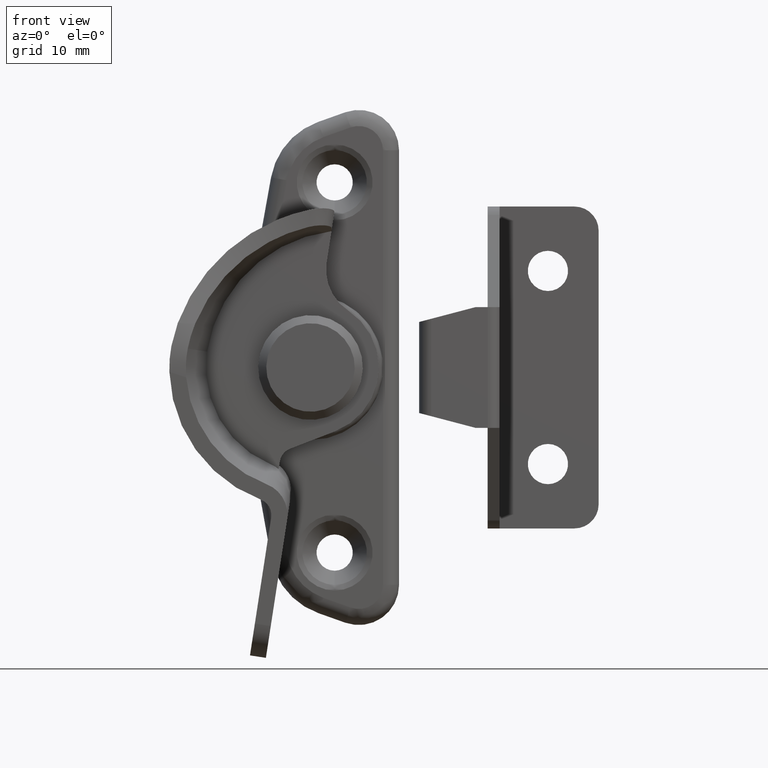
[diagram: clean part render]
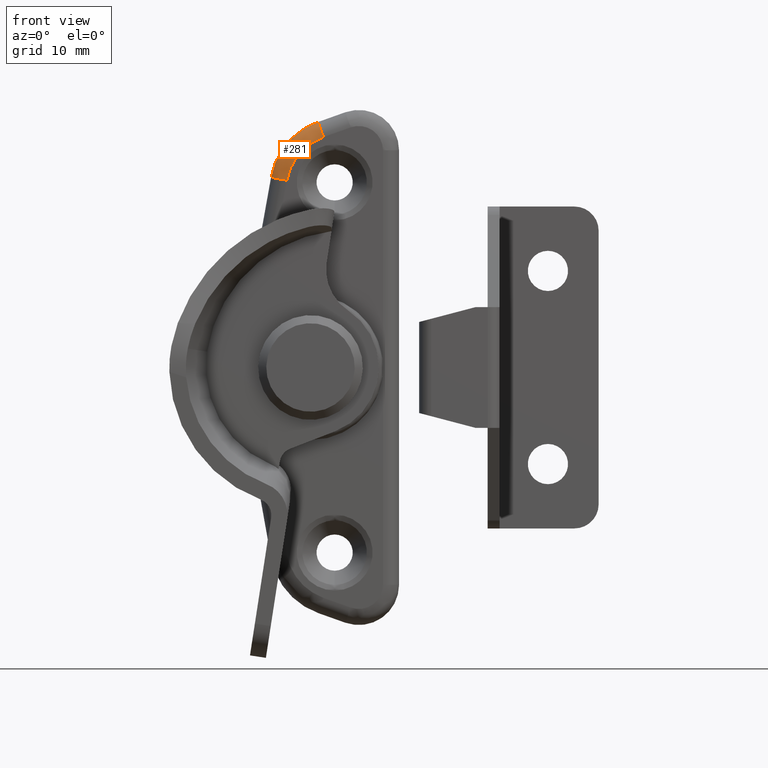
[diagram: same view with one face highlighted and labeled with its STEP entity id]
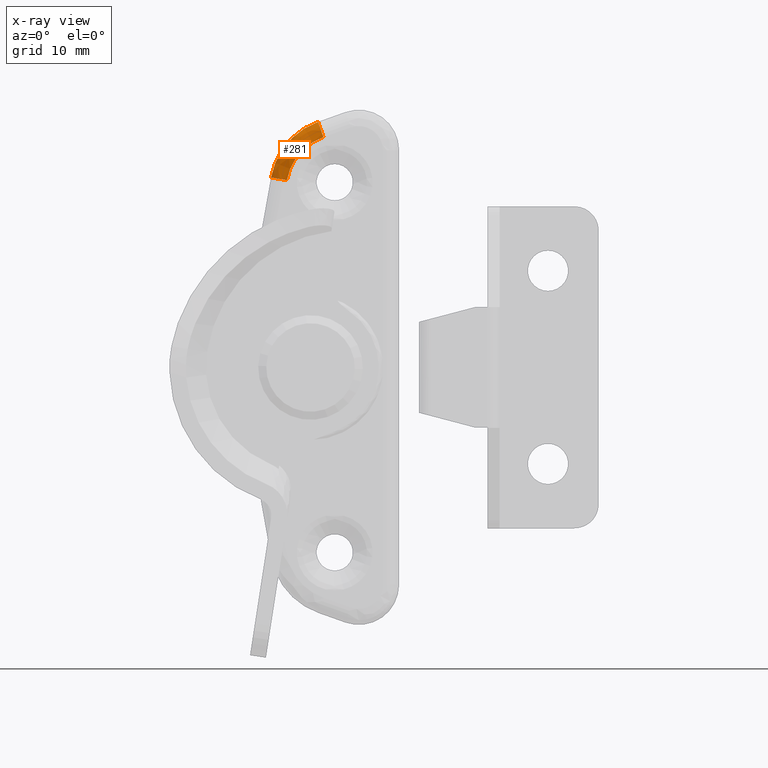
[diagram: x-ray of the same camera — body ghosted, the highlighted face saturated]
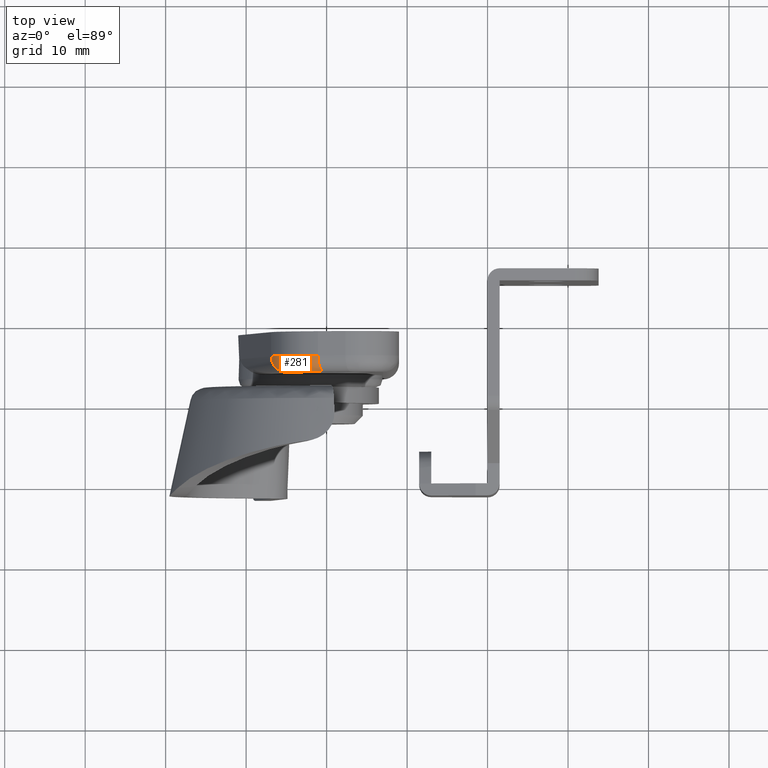
[diagram: same view with one face highlighted and labeled with its STEP entity id]
A machine part, front view. The second image highlights one B-rep face of the part: STEP entity #281.
The next image is the same camera in x-ray: the body ghosted, the highlighted face saturated — about 0% of this face is hidden behind the body in this view.
A second angle (top view) of the same face is appended — the face is thin or edge-on in the first view.
In plain terms, the highlighted face is a freeform B-spline surface patch.
Its self-contained STEP definition (entity closure, byte-faithful):
#281=ADVANCED_FACE('',(#1358),#1357,.T.);
#1357=( BOUNDED_SURFACE() B_SPLINE_SURFACE( 2,2,((#3332,#3333,#3334,#3335,#3336),(#3337,#3338,#3339,#3340,#3341),(#3342,#3343,#3344,#3345,#3346)), .UNSPECIFIED.,.F.,.F.,.F.) B_SPLINE_SURFACE_WITH_KNOTS((3,3),(3,2,3),(0.00000000000E+00,1.00000000000E+00),(0.00000000000E+00,5.00000000000E-01,1.00000000000E+00), .UNSPECIFIED. ) GEOMETRIC_REPRESENTATION_ITEM() RATIONAL_B_SPLINE_SURFACE(((1.00000000000E+00,7.07106781187E-01,1.00000000000E+00,7.07106781187E-01,1.00000000000E+00),(8.35845060825E-01,5.91031710531E-01,8.35845060825E-01,5.91031710531E-01,8.35845060825E-01),(1.00000000000E+00,7.07106781187E-01,1.00000000000E+00,7.07106781187E-01,1.00000000000E+00))) REPRESENTATION_ITEM('') SURFACE() );
#1358=FACE_OUTER_BOUND('',#3347,.T.);
#3332=CARTESIAN_POINT('',(-2.30002357792E+01,5.50000000000E+00,2.27169939655E+01));
#3333=CARTESIAN_POINT('',(-2.30002357792E+01,3.50000000000E+00,2.27169939655E+01));
#3334=CARTESIAN_POINT('',(-2.49810428909E+01,3.50000000000E+00,2.29934052284E+01));
#3335=CARTESIAN_POINT('',(-2.69618500026E+01,3.50000000000E+00,2.32698164913E+01));
#3336=CARTESIAN_POINT('',(-2.69618500026E+01,5.50000000000E+00,2.32698164913E+01));
#3337=CARTESIAN_POINT('',(-2.25463830480E+01,5.50000000000E+00,2.59693748866E+01));
#3338=CARTESIAN_POINT('',(-2.25463830480E+01,3.50000000000E+00,2.59693748866E+01));
#3339=CARTESIAN_POINT('',(-2.43456490672E+01,3.50000000000E+00,2.75467385179E+01));
#3340=CARTESIAN_POINT('',(-2.61449150864E+01,3.50000000000E+00,2.91241021492E+01));
#3341=CARTESIAN_POINT('',(-2.61449150864E+01,5.50000000000E+00,2.91241021492E+01));
#3342=CARTESIAN_POINT('',(-1.93813689815E+01,5.50000000000E+00,2.68449603571E+01));
#3343=CARTESIAN_POINT('',(-1.93813689815E+01,3.50000000000E+00,2.68449603571E+01));
#3344=CARTESIAN_POINT('',(-1.99146293741E+01,3.50000000000E+00,2.87725581765E+01));
#3345=CARTESIAN_POINT('',(-2.04478897667E+01,3.50000000000E+00,3.07001559960E+01));
#3346=CARTESIAN_POINT('',(-2.04478897667E+01,5.50000000000E+00,3.07001559960E+01));
#3347=EDGE_LOOP('',(#4992,#4993,#4994,#4995));
#4992=ORIENTED_EDGE('',*,*,#5828,.F.);
#4993=ORIENTED_EDGE('',*,*,#5829,.T.);
#4994=ORIENTED_EDGE('',*,*,#5826,.T.);
#4995=ORIENTED_EDGE('',*,*,#5830,.T.);
#5826=EDGE_CURVE('',#7827,#7820,#7828,.T.);
#5828=EDGE_CURVE('',#7840,#7841,#7842,.T.);
#5829=EDGE_CURVE('',#7840,#7827,#7848,.T.);
#5830=EDGE_CURVE('',#7820,#7841,#7854,.T.);
#7820=VERTEX_POINT('',#10924);
#7827=VERTEX_POINT('',#10928);
#7828=CIRCLE('',#10932,2.00000000000E+00);
#7840=VERTEX_POINT('',#10936);
#7841=VERTEX_POINT('',#10937);
#7842=CIRCLE('',#10941,2.00000000000E+00);
#7848=CIRCLE('',#10945,9.00000000000E+00);
#7854=CIRCLE('',#10949,7.00000000000E+00);
#10924=CARTESIAN_POINT('',(-2.49382032699E+01,3.50000000000E+00,2.32621304336E+01));
#10928=CARTESIAN_POINT('',(-2.69067704899E+01,5.50000000000E+00,2.36153203265E+01));
#10929=CARTESIAN_POINT('',(-2.49382032699E+01,5.50000000000E+00,2.32621304336E+01));
#10930=DIRECTION('',(1.76594946468E-01,1.05893956358E-14,9.84283609983E-01));
#10931=DIRECTION('',(-9.84283609983E-01,-0.00000000000E+00,1.76594946468E-01));
#10932=AXIS2_PLACEMENT_3D('',#10929,#10930,#10931);
#10936=CARTESIAN_POINT('',(-2.10642908598E+01,5.50000000000E+00,3.05055474315E+01));
#10937=CARTESIAN_POINT('',(-2.03940526724E+01,3.50000000000E+00,2.86211965947E+01));
#10938=CARTESIAN_POINT('',(-2.03940477976E+01,5.50000000000E+00,2.86211983286E+01));
#10939=DIRECTION('',(9.42174868952E-01,-2.58698905074E-06,3.35121644046E-01));
#10940=DIRECTION('',(-3.35121644047E-01,3.01980662697E-14,9.42174868955E-01));
#10941=AXIS2_PLACEMENT_3D('',#10938,#10939,#10940);
#10942=CARTESIAN_POINT('',(-1.80482180000E+01,5.50000000000E+00,2.20259658083E+01));
#10943=DIRECTION('',(0.00000000000E+00,-1.00000000000E+00,0.00000000000E+00));
#10944=DIRECTION('',(-0.00000000000E+00,-0.00000000000E+00,-1.00000000000E+00));
#10945=AXIS2_PLACEMENT_3D('',#10942,#10943,#10944);
#10946=CARTESIAN_POINT('',(-1.80482180000E+01,3.50000000000E+00,2.20259658083E+01));
#10947=DIRECTION('',(-0.00000000000E+00,1.00000000000E+00,0.00000000000E+00));
#10948=DIRECTION('',(-0.00000000000E+00,-0.00000000000E+00,-1.00000000000E+00));
#10949=AXIS2_PLACEMENT_3D('',#10946,#10947,#10948);